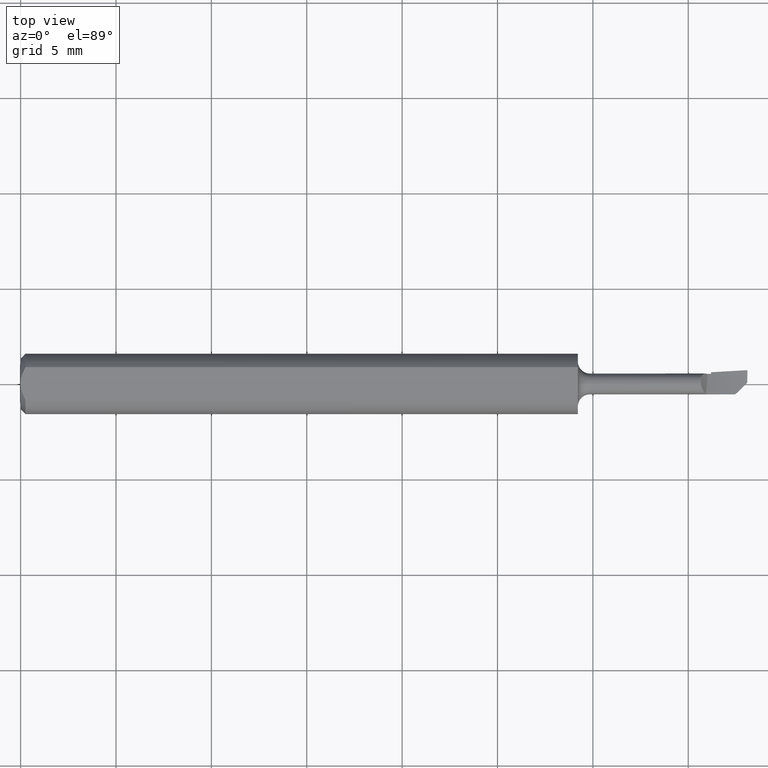
[diagram: clean part render]
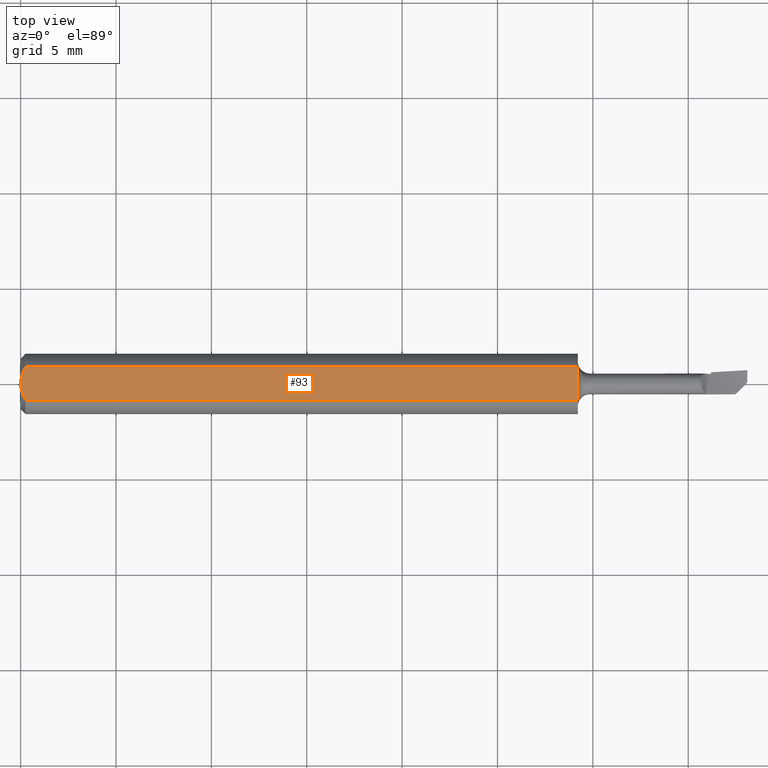
[diagram: same view with one face highlighted and labeled with its STEP entity id]
A machine part, top view. The second image highlights one B-rep face of the part: STEP entity #93.
In plain terms, the highlighted planar face has unit normal (0, -0, 1).
Its self-contained STEP definition (entity closure, byte-faithful):
#14 = EDGE_CURVE ( 'NONE', #701, #187, #283, .T. ) ;
#22 = VERTEX_POINT ( 'NONE', #217 ) ;
#40 = CARTESIAN_POINT ( 'NONE',  ( 0.007163450771350544227, -0.02864528976618612235, 0.05234999999999998682 ) ) ;
#89 = CARTESIAN_POINT ( 'NONE',  ( 0.001055043921633259376, -0.01186408073210959077, 0.05234999999999997988 ) ) ;
#93 = ADVANCED_FACE ( 'NONE', ( #493 ), #433, .T. ) ;
#112 = EDGE_LOOP ( 'NONE', ( #510, #287, #491, #753, #635 ) ) ;
#119 = DIRECTION ( 'NONE',  ( 1.000000000000000000, 0.000000000000000000, 0.000000000000000000 ) ) ;
#122 = EDGE_CURVE ( 'NONE', #22, #657, #550, .T. ) ;
#132 = VECTOR ( 'NONE', #232, 39.37007874015748143 ) ;
#142 = DIRECTION ( 'NONE',  ( 0.000000000000000000, -1.000000000000000000, -1.036675771730518732E-16 ) ) ;
#187 = VERTEX_POINT ( 'NONE', #445 ) ;
#198 = CARTESIAN_POINT ( 'NONE',  ( 1.150000000000000577, -0.03386738844375219298, 0.05234999999999997988 ) ) ;
#209 = CARTESIAN_POINT ( 'NONE',  ( 0.000000000000000000, -5.426997665009263557E-18, 0.05234999999999997988 ) ) ;
#217 = CARTESIAN_POINT ( 'NONE',  ( 0.01000000000000000021, -0.03386738844375219298, 0.05234999999999997988 ) ) ;
#232 = DIRECTION ( 'NONE',  ( -1.000000000000000000, -0.000000000000000000, -0.000000000000000000 ) ) ;
#235 = CARTESIAN_POINT ( 'NONE',  ( 0.001063697276021673783, 0.01189177144351694256, 0.05234999999999998682 ) ) ;
#244 = DIRECTION ( 'NONE',  ( 0.000000000000000000, -1.036675771730518732E-16, 1.000000000000000000 ) ) ;
#283 = LINE ( 'NONE', #470, #132 ) ;
#287 = ORIENTED_EDGE ( 'NONE', *, *, #368, .T. ) ;
#321 = VECTOR ( 'NONE', #119, 39.37007874015748143 ) ;
#348 = CARTESIAN_POINT ( 'NONE',  ( 0.01000000000000000021, -0.03386738844375219298, 0.05234999999999997988 ) ) ;
#350 = B_SPLINE_CURVE_WITH_KNOTS ( 'NONE', 3,
 ( #610, #540, #369, #235, #607, #484 ),
 .UNSPECIFIED., .F., .F.,
 ( 4, 2, 4 ),
 ( 0.0009229516234080545421, 0.001371626545108214999, 0.001820301466808375672 ),
 .UNSPECIFIED. ) ;
#353 = CARTESIAN_POINT ( 'NONE',  ( 0.004679365186781217663, -0.02325953974079653444, 0.05234999999999998682 ) ) ;
#368 = EDGE_CURVE ( 'NONE', #735, #22, #765, .T. ) ;
#369 = CARTESIAN_POINT ( 'NONE',  ( 0.004671770759546980435, 0.02323517832780102113, 0.05234999999999997988 ) ) ;
#377 = CARTESIAN_POINT ( 'NONE',  ( 0.000000000000000000, -0.03386738844375219298, 0.05234999999999997988 ) ) ;
#404 = CARTESIAN_POINT ( 'NONE',  ( -7.325417714211966649E-16, -0.005965286321680239069, 0.05234999999999997988 ) ) ;
#433 = PLANE ( 'NONE',  #497 ) ;
#445 = CARTESIAN_POINT ( 'NONE',  ( 0.01000000000000000021, 0.03386738844375217911, 0.05234999999999997988 ) ) ;
#470 = CARTESIAN_POINT ( 'NONE',  ( 0.000000000000000000, 0.03386738844375217911, 0.05234999999999997988 ) ) ;
#484 = CARTESIAN_POINT ( 'NONE',  ( 0.000000000000000000, -5.426997665009263557E-18, 0.05234999999999997988 ) ) ;
#491 = ORIENTED_EDGE ( 'NONE', *, *, #122, .T. ) ;
#493 = FACE_OUTER_BOUND ( 'NONE', #112, .T. ) ;
#497 = AXIS2_PLACEMENT_3D ( 'NONE', #671, #244, #554 ) ;
#499 = EDGE_CURVE ( 'NONE', #187, #735, #350, .T. ) ;
#510 = ORIENTED_EDGE ( 'NONE', *, *, #499, .T. ) ;
#540 = CARTESIAN_POINT ( 'NONE',  ( 0.007185421074056353059, 0.02868573718286557619, 0.05234999999999997988 ) ) ;
#550 = LINE ( 'NONE', #377, #321 ) ;
#554 = DIRECTION ( 'NONE',  ( 0.000000000000000000, -1.000000000000000000, -1.036675771730518732E-16 ) ) ;
#605 = EDGE_CURVE ( 'NONE', #701, #657, #760, .T. ) ;
#607 = CARTESIAN_POINT ( 'NONE',  ( -7.517250668112770884E-16, 0.005954997531773981688, 0.05234999999999998682 ) ) ;
#610 = CARTESIAN_POINT ( 'NONE',  ( 0.01000000000000000021, 0.03386738844375217911, 0.05234999999999997988 ) ) ;
#618 = VECTOR ( 'NONE', #142, 39.37007874015748143 ) ;
#635 = ORIENTED_EDGE ( 'NONE', *, *, #14, .T. ) ;
#648 = CARTESIAN_POINT ( 'NONE',  ( 1.150000000000000577, 0.03386738844375217911, 0.05234999999999997988 ) ) ;
#651 = CARTESIAN_POINT ( 'NONE',  ( 0.000000000000000000, -5.426997665009263557E-18, 0.05234999999999997988 ) ) ;
#657 = VERTEX_POINT ( 'NONE', #198 ) ;
#671 = CARTESIAN_POINT ( 'NONE',  ( 1.500787401574803281, 0.08234999999999999265, 0.05234999999999998682 ) ) ;
#701 = VERTEX_POINT ( 'NONE', #648 ) ;
#735 = VERTEX_POINT ( 'NONE', #209 ) ;
#747 = CARTESIAN_POINT ( 'NONE',  ( 1.150000000000000577, 0.1123499999999999360, 0.05234999999999998682 ) ) ;
#753 = ORIENTED_EDGE ( 'NONE', *, *, #605, .F. ) ;
#760 = LINE ( 'NONE', #747, #618 ) ;
#765 = B_SPLINE_CURVE_WITH_KNOTS ( 'NONE', 3,
 ( #651, #404, #89, #353, #40, #348 ),
 .UNSPECIFIED., .F., .F.,
 ( 4, 2, 4 ),
 ( 0.001820301466808375672, 0.002269751589838321822, 0.002719201712868267538 ),
 .UNSPECIFIED. ) ;